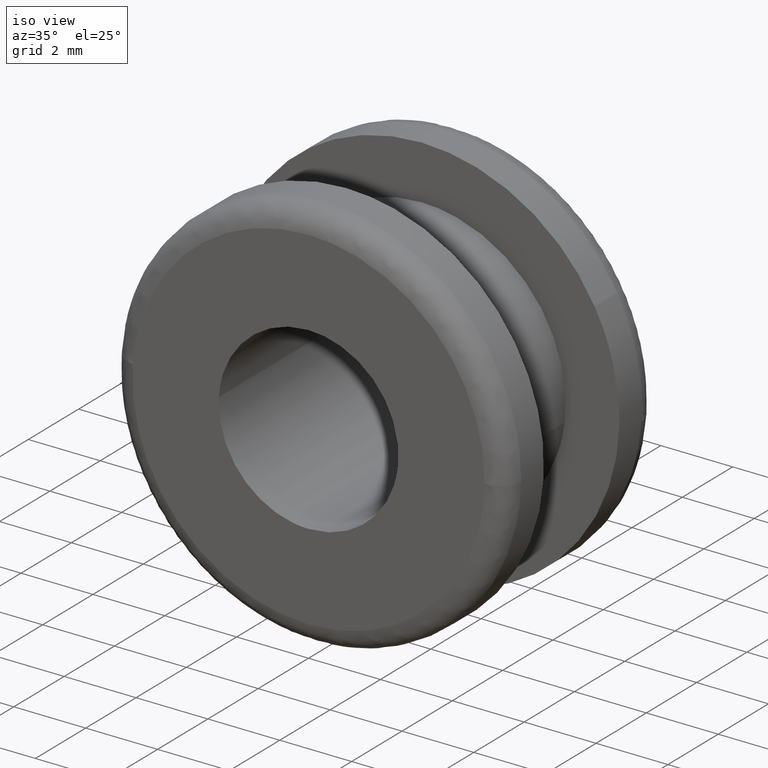
[diagram: clean part render]
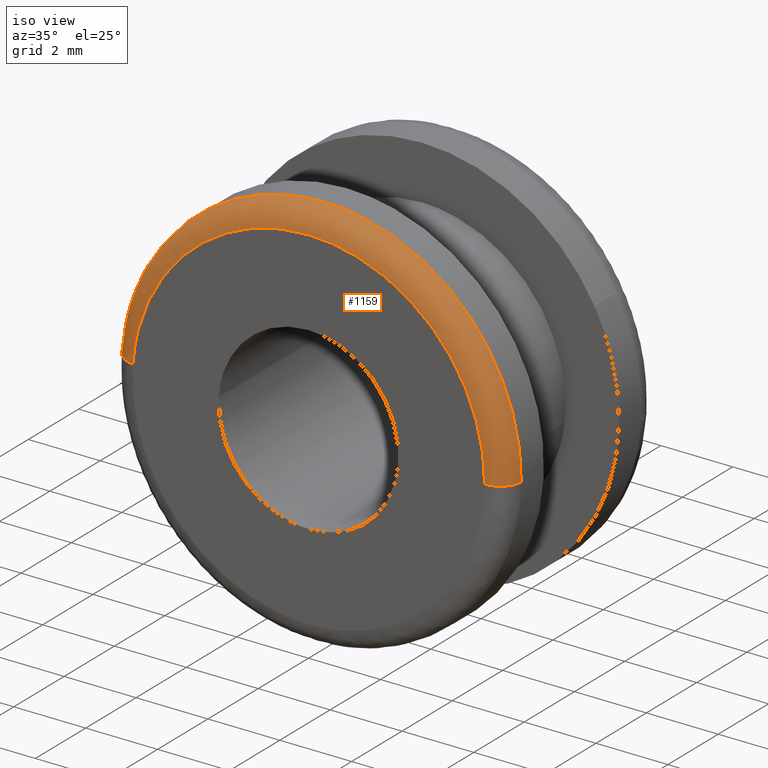
[diagram: same view with one face highlighted and labeled with its STEP entity id]
A machine part, iso view. The second image highlights one B-rep face of the part: STEP entity #1159.
In plain terms, the highlighted face is a freeform B-spline surface patch.
Its self-contained STEP definition (entity closure, byte-faithful):
#72=CARTESIAN_POINT('',(5.499565743120951,0.599999999989269,-0.069113219361360));
#73=VERTEX_POINT('',#72);
#135=CARTESIAN_POINT('',(-5.486611206122207,0.599999999989249,0.383532883667368));
#136=VERTEX_POINT('',#135);
#152=CARTESIAN_POINT('',(0.0,0.599999999999979,5.500000000000000));
#153=VERTEX_POINT('',#152);
#154=CARTESIAN_POINT('',(0.0,0.599999999999979,5.500000000000000));
#155=CARTESIAN_POINT('',(-5.128952659961872,0.599999999999979,5.500000000000001));
#156=CARTESIAN_POINT('',(-5.486611206122207,0.599999999989249,0.383532883667368));
#164=(BOUNDED_CURVE()B_SPLINE_CURVE(2,(#154,#155,#156),.UNSPECIFIED.,.F.,.U.)B_SPLINE_CURVE_WITH_KNOTS((3,3),(0.500000000000000,0.737833686534983),.UNSPECIFIED.)CURVE()GEOMETRIC_REPRESENTATION_ITEM()RATIONAL_B_SPLINE_CURVE((1.0,0.721360504033997,0.972879876386746))REPRESENTATION_ITEM(''));
#165=EDGE_CURVE('',#153,#136,#164,.T.);
#167=CARTESIAN_POINT('',(5.499565743120951,0.599999999989269,-0.069113219361360));
#168=CARTESIAN_POINT('',(5.500000000000001,0.599999999999979,-0.034557973958315));
#169=CARTESIAN_POINT('',(5.500000000000000,0.599999999999979,-1.928755E-016));
#170=CARTESIAN_POINT('',(5.500000000000001,0.599999999999979,5.500000000000001));
#171=CARTESIAN_POINT('',(0.0,0.599999999999979,5.500000000000000));
#179=(BOUNDED_CURVE()B_SPLINE_CURVE(2,(#167,#168,#169,#170,#171),.UNSPECIFIED.,.F.,.U.)B_SPLINE_CURVE_WITH_KNOTS((3,2,3),(0.247784295921541,0.250000000000000,0.500000000000000),.UNSPECIFIED.)CURVE()GEOMETRIC_REPRESENTATION_ITEM()RATIONAL_B_SPLINE_CURVE((0.994854295643582,0.997404141202089,1.0,0.707106781186548,1.0))REPRESENTATION_ITEM(''));
#180=EDGE_CURVE('',#73,#153,#179,.T.);
#1037=CARTESIAN_POINT('',(4.899613116877163,-1.087399E-014,-0.061573595449736));
#1038=VERTEX_POINT('',#1037);
#1039=CARTESIAN_POINT('',(5.499565743120951,0.599999999989269,-0.069113219361360));
#1040=CARTESIAN_POINT('',(5.499565743099569,5.574002E-010,-0.069113219358170));
#1041=CARTESIAN_POINT('',(4.899613116877163,-1.087399E-014,-0.061573595449736));
#1049=(BOUNDED_CURVE()B_SPLINE_CURVE(2,(#1039,#1040,#1041),.UNSPECIFIED.,.F.,.U.)B_SPLINE_CURVE_WITH_KNOTS((3,3),(-1.725134643245204,-0.274865357670907),.UNSPECIFIED.)CURVE()GEOMETRIC_REPRESENTATION_ITEM()RATIONAL_B_SPLINE_CURVE((0.883342149639997,0.624617224304075,0.883342149313133))REPRESENTATION_ITEM(''));
#1050=EDGE_CURVE('',#73,#1038,#1049,.T.);
#1067=CARTESIAN_POINT('',(-4.888071801987687,-1.090493E-014,0.341692932740065));
#1068=VERTEX_POINT('',#1067);
#1084=CARTESIAN_POINT('',(-5.486611206122207,0.599999999989249,0.383532883667368));
#1085=CARTESIAN_POINT('',(-5.486611206100972,3.411350E-010,0.383532883663435));
#1086=CARTESIAN_POINT('',(-4.888071801987687,-1.090493E-014,0.341692932740065));
#1094=(BOUNDED_CURVE()B_SPLINE_CURVE(2,(#1084,#1085,#1086),.UNSPECIFIED.,.F.,.U.)B_SPLINE_CURVE_WITH_KNOTS((3,3),(-1.725134643245138,-0.274865357301275),.UNSPECIFIED.)CURVE()GEOMETRIC_REPRESENTATION_ITEM()RATIONAL_B_SPLINE_CURVE((0.863472075359911,0.610566959969338,0.863472075169339))REPRESENTATION_ITEM(''));
#1095=EDGE_CURVE('',#136,#1068,#1094,.T.);
#1100=CARTESIAN_POINT('',(5.498113471445105,0.641722346460023,-0.069094968613637));
#1101=CARTESIAN_POINT('',(5.567208440058743,0.641722346460023,5.429018502831468));
#1102=CARTESIAN_POINT('',(0.069094968613637,0.641722346460023,5.498113471445105));
#1103=CARTESIAN_POINT('',(-5.123067401110348,0.641722346460023,5.563363542735231));
#1104=CARTESIAN_POINT('',(-5.485162355354261,0.641722346460023,0.383431604042189));
#1105=CARTESIAN_POINT('',(5.546084467610696,-0.046522561762106,-0.069697821663440));
#1106=CARTESIAN_POINT('',(5.615782289274137,-0.046522561762106,5.476386645947258));
#1107=CARTESIAN_POINT('',(0.069697821663441,-0.046522561762106,5.546084467610696));
#1108=CARTESIAN_POINT('',(-5.167766123304985,-0.046522561762106,5.611903845252159));
#1109=CARTESIAN_POINT('',(-5.533020353135305,-0.046522561762106,0.386777041727825));
#1110=CARTESIAN_POINT('',(4.857893912486251,0.001452396937526,-0.061049308850185));
#1111=CARTESIAN_POINT('',(4.918943221336434,0.001452396937526,4.796844603636064));
#1112=CARTESIAN_POINT('',(0.061049308850185,0.001452396937526,4.857893912486251));
#1113=CARTESIAN_POINT('',(-4.526519518079248,0.001452396937526,4.915546037302489));
#1114=CARTESIAN_POINT('',(-4.846450869641759,0.001452396937526,0.338783487246183));
#1122=(BOUNDED_SURFACE()B_SPLINE_SURFACE(2,2,((#1100,#1105,#1110),(#1101,#1106,#1111),(#1102,#1107,#1112),(#1103,#1108,#1113),(#1104,#1109,#1114)),.UNSPECIFIED.,.F.,.F.,.U.)B_SPLINE_SURFACE_WITH_KNOTS((3,2,3),(3,3),(0.0,9.110291979711851,17.856172280235231),(0.0,1.093424726906879),.UNSPECIFIED.)GEOMETRIC_REPRESENTATION_ITEM()RATIONAL_B_SPLINE_SURFACE(((0.910479851220577,0.597479469929805,0.910479956481111),(0.643806476931789,0.422481784807109,0.643806551362227),(0.910479851220577,0.597479469929805,0.910479956481111),(0.654473411903341,0.429481692212017,0.654473487566982),(0.889999336075198,0.584039647712381,0.889999438967981)))REPRESENTATION_ITEM('')SURFACE());
#1123=ORIENTED_EDGE('',*,*,#165,.T.);
#1124=ORIENTED_EDGE('',*,*,#1095,.T.);
#1125=CARTESIAN_POINT('',(0.0,-9.000857E-016,4.900000000000000));
#1126=VERTEX_POINT('',#1125);
#1127=CARTESIAN_POINT('',(0.0,-9.000857E-016,4.900000000000000));
#1128=CARTESIAN_POINT('',(-4.569430551590508,-9.000857E-016,4.900000000000000));
#1129=CARTESIAN_POINT('',(-4.888071801987687,-1.090493E-014,0.341692932740065));
#1137=(BOUNDED_CURVE()B_SPLINE_CURVE(2,(#1127,#1128,#1129),.UNSPECIFIED.,.F.,.U.)B_SPLINE_CURVE_WITH_KNOTS((3,3),(0.500000000000000,0.737833686534537),.UNSPECIFIED.)CURVE()GEOMETRIC_REPRESENTATION_ITEM()RATIONAL_B_SPLINE_CURVE((1.0,0.721360504034520,0.972879876385802))REPRESENTATION_ITEM(''));
#1138=EDGE_CURVE('',#1126,#1068,#1137,.T.);
#1139=ORIENTED_EDGE('',*,*,#1138,.F.);
#1140=CARTESIAN_POINT('',(4.899613116877163,-1.087399E-014,-0.061573595449736));
#1141=CARTESIAN_POINT('',(4.900000000000000,-9.000857E-016,-0.030788013178068));
#1142=CARTESIAN_POINT('',(4.900000000000000,-9.000857E-016,-1.928755E-016));
#1143=CARTESIAN_POINT('',(4.899999999999999,-9.000857E-016,4.899999999999999));
#1144=CARTESIAN_POINT('',(0.0,-9.000857E-016,4.900000000000000));
#1152=(BOUNDED_CURVE()B_SPLINE_CURVE(2,(#1140,#1141,#1142,#1143,#1144),.UNSPECIFIED.,.F.,.U.)B_SPLINE_CURVE_WITH_KNOTS((3,2,3),(0.247784295920450,0.250000000000000,0.500000000000000),.UNSPECIFIED.)CURVE()GEOMETRIC_REPRESENTATION_ITEM()RATIONAL_B_SPLINE_CURVE((0.994854295641070,0.997404141200810,1.0,0.707106781186547,1.0))REPRESENTATION_ITEM(''));
#1153=EDGE_CURVE('',#1038,#1126,#1152,.T.);
#1154=ORIENTED_EDGE('',*,*,#1153,.F.);
#1155=ORIENTED_EDGE('',*,*,#1050,.F.);
#1156=ORIENTED_EDGE('',*,*,#180,.T.);
#1157=EDGE_LOOP('',(#1123,#1124,#1139,#1154,#1155,#1156));
#1158=FACE_OUTER_BOUND('',#1157,.T.);
#1159=ADVANCED_FACE('',(#1158),#1122,.T.);